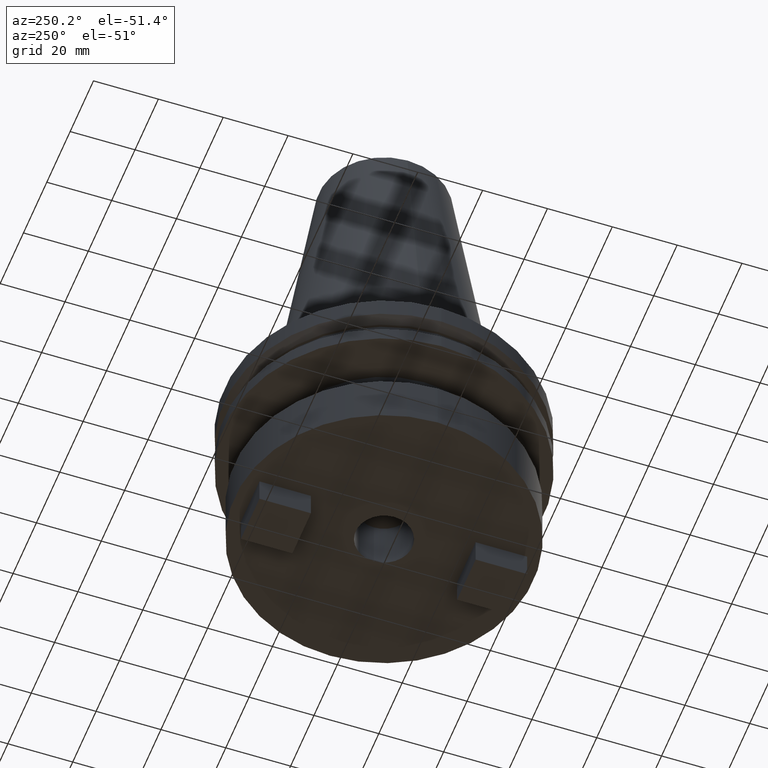
[diagram: clean part render]
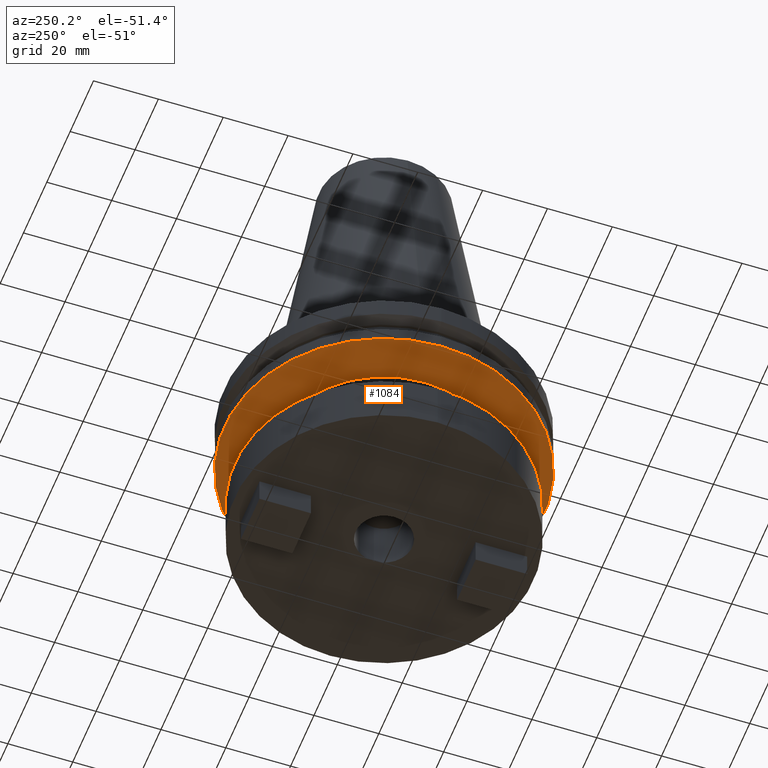
[diagram: same view with one face highlighted and labeled with its STEP entity id]
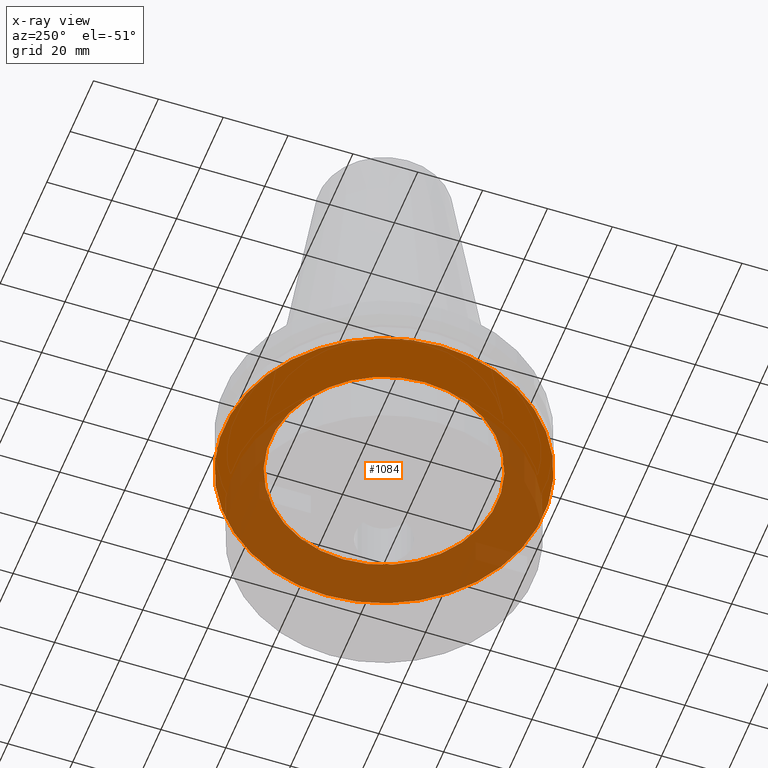
[diagram: x-ray of the same camera — body ghosted, the highlighted face saturated]
A machine part, auxiliary view. The second image highlights one B-rep face of the part: STEP entity #1084.
The next image is the same camera in x-ray: the body ghosted, the highlighted face saturated — about 53% of this face is hidden behind the body in this view.
In plain terms, the highlighted planar face has unit normal (0, -0, 1).
Its self-contained STEP definition (entity closure, byte-faithful):
#2 = AXIS2_PLACEMENT_3D ( 'NONE', #373, #952, #266 ) ;
#8 = EDGE_CURVE ( 'NONE', #659, #770, #258, .T. ) ;
#28 = DIRECTION ( 'NONE',  ( 1.000000000000000000, 0.000000000000000000, 0.000000000000000000 ) ) ;
#34 = DIRECTION ( 'NONE',  ( 1.000000000000000000, 0.000000000000000000, 0.000000000000000000 ) ) ;
#66 = ORIENTED_EDGE ( 'NONE', *, *, #109, .T. ) ;
#102 = VERTEX_POINT ( 'NONE', #935 ) ;
#109 = EDGE_CURVE ( 'NONE', #585, #102, #190, .T. ) ;
#114 = FACE_OUTER_BOUND ( 'NONE', #835, .T. ) ;
#190 = CIRCLE ( 'NONE', #223, 34.92499999999999716 ) ;
#195 = DIRECTION ( 'NONE',  ( -0.000000000000000000, -0.000000000000000000, 1.000000000000000000 ) ) ;
#196 = FACE_BOUND ( 'NONE', #861, .T. ) ;
#198 = CARTESIAN_POINT ( 'NONE',  ( 0.000000000000000000, 0.000000000000000000, -19.04999999999999716 ) ) ;
#223 = AXIS2_PLACEMENT_3D ( 'NONE', #198, #195, #28 ) ;
#258 = CIRCLE ( 'NONE', #995, 49.21499999999998920 ) ;
#266 = DIRECTION ( 'NONE',  ( 1.000000000000000000, 0.000000000000000000, 0.000000000000000000 ) ) ;
#311 = CARTESIAN_POINT ( 'NONE',  ( 49.21499999999998920, 0.000000000000000000, -19.04999999999999716 ) ) ;
#352 = CARTESIAN_POINT ( 'NONE',  ( 0.000000000000000000, 49.21499999999998920, -19.04999999999999716 ) ) ;
#356 = DIRECTION ( 'NONE',  ( 1.000000000000000000, 0.000000000000000000, 0.000000000000000000 ) ) ;
#373 = CARTESIAN_POINT ( 'NONE',  ( 0.000000000000000000, 0.000000000000000000, -19.04999999999999716 ) ) ;
#383 = CARTESIAN_POINT ( 'NONE',  ( 0.000000000000000000, 0.000000000000000000, -19.04999999999999716 ) ) ;
#508 = CIRCLE ( 'NONE', #810, 49.21499999999998920 ) ;
#530 = PLANE ( 'NONE',  #1023 ) ;
#549 = EDGE_CURVE ( 'NONE', #102, #585, #740, .T. ) ;
#570 = ORIENTED_EDGE ( 'NONE', *, *, #8, .F. ) ;
#585 = VERTEX_POINT ( 'NONE', #975 ) ;
#638 = DIRECTION ( 'NONE',  ( 1.000000000000000000, 0.000000000000000000, 0.000000000000000000 ) ) ;
#654 = ORIENTED_EDGE ( 'NONE', *, *, #826, .F. ) ;
#659 = VERTEX_POINT ( 'NONE', #1077 ) ;
#675 = ORIENTED_EDGE ( 'NONE', *, *, #549, .T. ) ;
#686 = CARTESIAN_POINT ( 'NONE',  ( 0.000000000000000000, 0.000000000000000000, -19.04999999999999716 ) ) ;
#724 = DIRECTION ( 'NONE',  ( -0.000000000000000000, -0.000000000000000000, 1.000000000000000000 ) ) ;
#740 = CIRCLE ( 'NONE', #2, 34.92499999999999716 ) ;
#770 = VERTEX_POINT ( 'NONE', #311 ) ;
#773 = DIRECTION ( 'NONE',  ( 0.000000000000000000, -0.000000000000000000, 1.000000000000000000 ) ) ;
#810 = AXIS2_PLACEMENT_3D ( 'NONE', #383, #724, #638 ) ;
#826 = EDGE_CURVE ( 'NONE', #770, #659, #508, .T. ) ;
#835 = EDGE_LOOP ( 'NONE', ( #654, #570 ) ) ;
#861 = EDGE_LOOP ( 'NONE', ( #66, #675 ) ) ;
#935 = CARTESIAN_POINT ( 'NONE',  ( -34.92499999999999716, 4.277078946022130887E-15, -19.04999999999999716 ) ) ;
#952 = DIRECTION ( 'NONE',  ( -0.000000000000000000, -0.000000000000000000, 1.000000000000000000 ) ) ;
#975 = CARTESIAN_POINT ( 'NONE',  ( 34.92499999999999716, 0.000000000000000000, -19.04999999999999716 ) ) ;
#995 = AXIS2_PLACEMENT_3D ( 'NONE', #686, #1032, #356 ) ;
#1023 = AXIS2_PLACEMENT_3D ( 'NONE', #352, #773, #34 ) ;
#1032 = DIRECTION ( 'NONE',  ( -0.000000000000000000, -0.000000000000000000, 1.000000000000000000 ) ) ;
#1077 = CARTESIAN_POINT ( 'NONE',  ( -49.21499999999998920, 6.027099222003697037E-15, -19.04999999999999716 ) ) ;
#1084 = ADVANCED_FACE ( 'NONE', ( #114, #196 ), #530, .F. ) ;